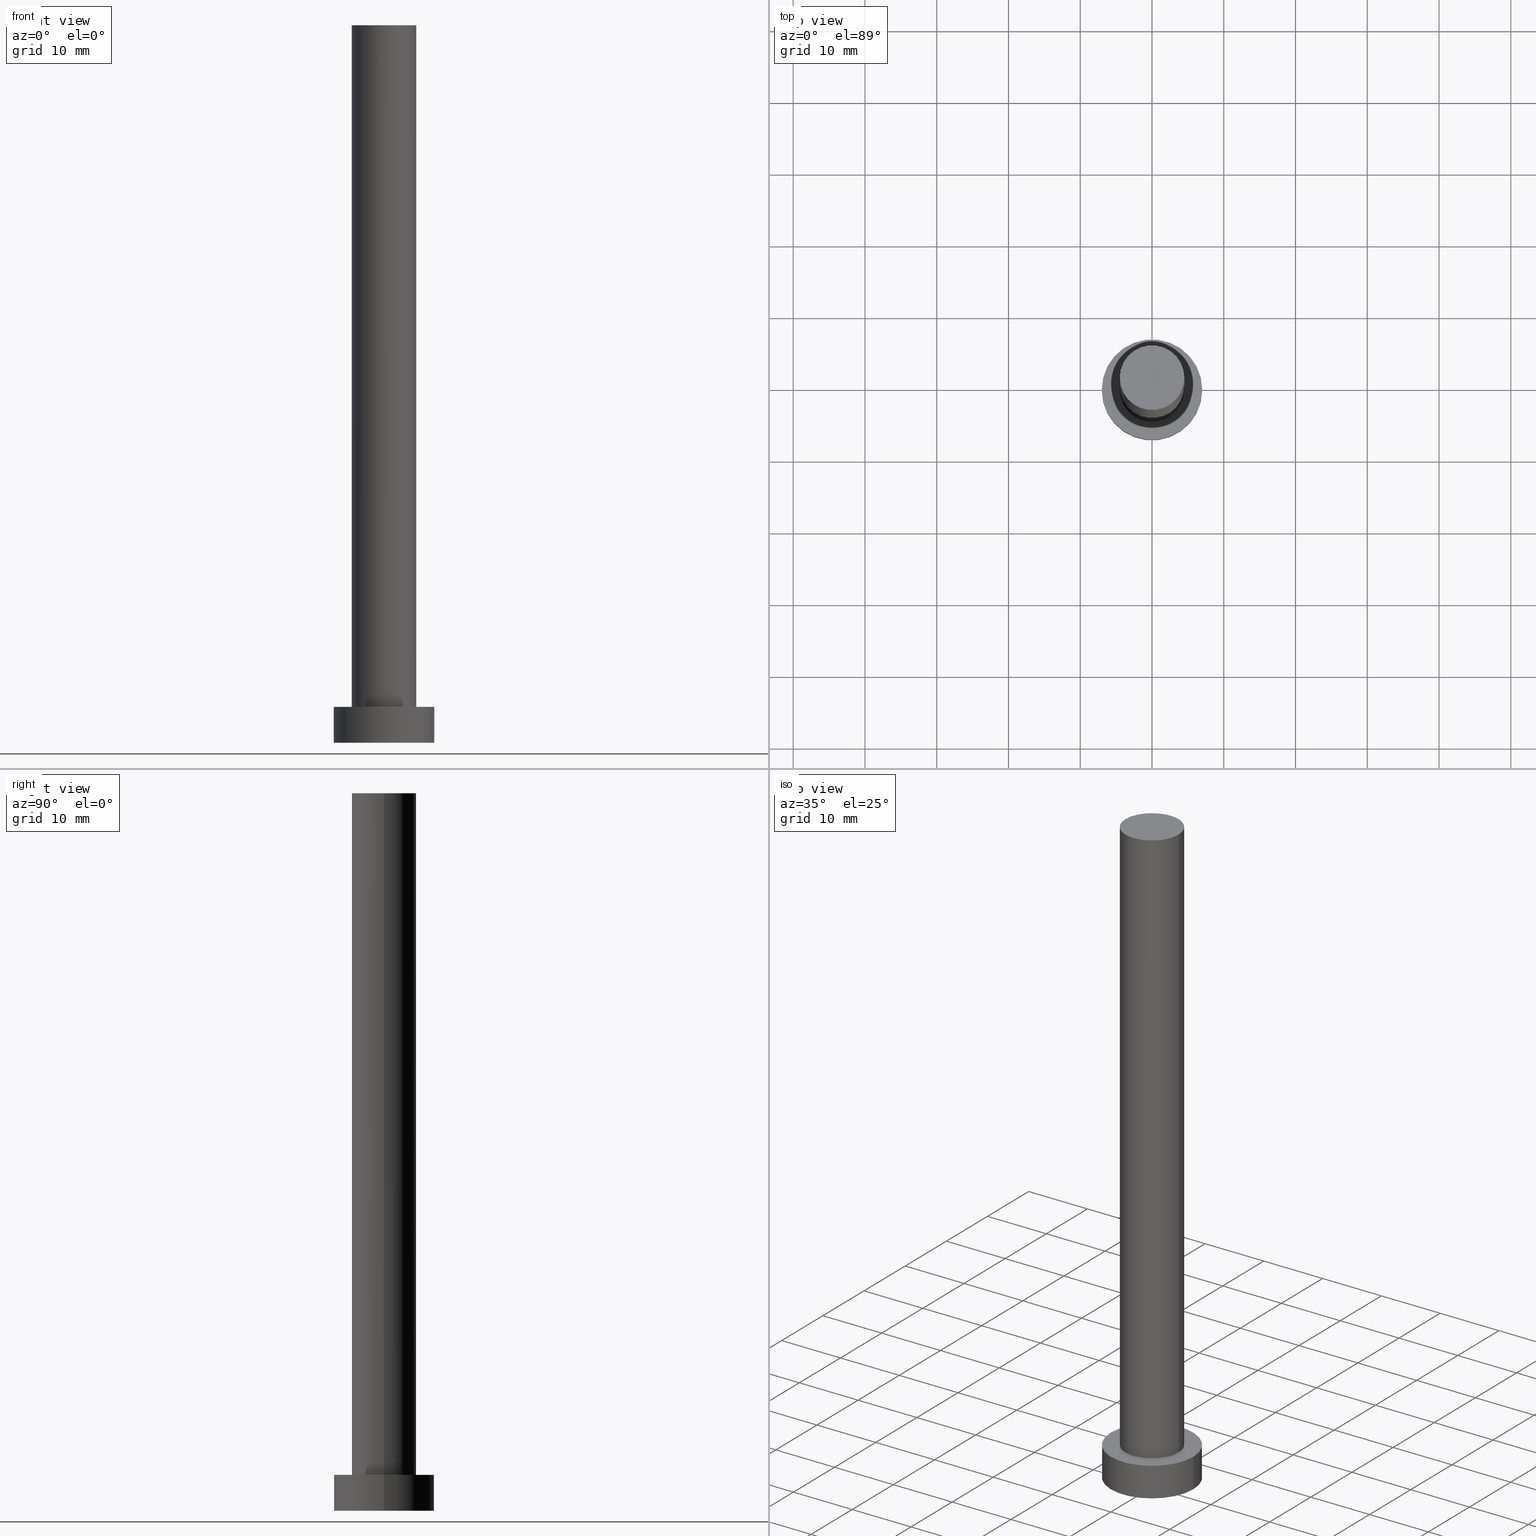
[diagram: canonical four-view strip — front | top / right | iso, engineering-drawing reading convention]
A machine part, canonical four-view strip (front | top / right | iso — engineering-drawing reading convention). The complete STEP part file that produces these views, byte-faithful:
ISO-10303-21;
HEADER;
FILE_DESCRIPTION (( 'STEP AP203' ),
    '1' );
FILE_NAME ('5e6f.STEP',
    '2023-02-13T12:09:26',
    ( '' ),
    ( '' ),
    'SwSTEP 2.0',
    'SolidWorks 2019',
    '' );
FILE_SCHEMA (( 'CONFIG_CONTROL_DESIGN' ));
ENDSEC;

DATA;
#1 = ORIENTED_EDGE ( 'NONE', *, *, #148, .F. ) ;
#2 = AXIS2_PLACEMENT_3D ( 'NONE', #46, #243, #30 ) ;
#3 = AXIS2_PLACEMENT_3D ( 'NONE', #10, #84, #91 ) ;
#4 = CARTESIAN_POINT ( 'NONE',  ( 0.000000000000000000, 0.000000000000000000, 0.000000000000000000 ) ) ;
#5 = FACE_OUTER_BOUND ( 'NONE', #189, .T. ) ;
#6 = DIRECTION ( 'NONE',  ( 0.000000000000000000, 0.000000000000000000, 1.000000000000000000 ) ) ;
#7 = CARTESIAN_POINT ( 'NONE',  ( 7.000000000000000000, 8.572527594031473190E-16, 5.000000000000000000 ) ) ;
#8 = FACE_OUTER_BOUND ( 'NONE', #244, .T. ) ;
#9 = CARTESIAN_POINT ( 'NONE',  ( 0.000000000000000000, 0.000000000000000000, 100.0000000000000000 ) ) ;
#10 = CARTESIAN_POINT ( 'NONE',  ( 0.000000000000000000, 0.000000000000000000, 0.000000000000000000 ) ) ;
#11 = VERTEX_POINT ( 'NONE', #186 ) ;
#12 = COORDINATED_UNIVERSAL_TIME_OFFSET ( 1, 0, .AHEAD. ) ;
#13 = ADVANCED_FACE ( 'NONE', ( #54 ), #205, .T. ) ;
#14 = PERSON ( 'NEUR�EN�', 'NEUR�EN�', 'NEUR�EN�', ('NEUR�EN�'), ('NEUR�EN�'), ('NEUR�EN�') ) ;
#15 = PERSON_AND_ORGANIZATION ( #14, #238 ) ;
#16 = DIRECTION ( 'NONE',  ( -0.000000000000000000, -0.000000000000000000, -1.000000000000000000 ) ) ;
#17 = PERSON_AND_ORGANIZATION_ROLE ( 'creator' ) ;
#18 = ORIENTED_EDGE ( 'NONE', *, *, #144, .T. ) ;
#19 = CIRCLE ( 'NONE', #194, 4.500000000000000888 ) ;
#20 = ORIENTED_EDGE ( 'NONE', *, *, #239, .T. ) ;
#21 = ORIENTED_EDGE ( 'NONE', *, *, #106, .T. ) ;
#22 = PRODUCT_DEFINITION_FORMATION_WITH_SPECIFIED_SOURCE ( 'LIBOVOLN�', '', #44, .NOT_KNOWN. ) ;
#23 = EDGE_LOOP ( 'NONE', ( #42, #230, #47, #222 ) ) ;
#24 = DESIGN_CONTEXT ( 'detailed design', #75, 'design' ) ;
#25 = ADVANCED_BREP_SHAPE_REPRESENTATION ( '5e6f', ( #41, #56 ), #130 ) ;
#26 = CARTESIAN_POINT ( 'NONE',  ( 4.500000000000000888, 5.510910596163089556E-16, 100.0000000000000000 ) ) ;
#27 = DIRECTION ( 'NONE',  ( 0.000000000000000000, 0.000000000000000000, 1.000000000000000000 ) ) ;
#28 = CARTESIAN_POINT ( 'NONE',  ( 0.000000000000000000, 0.000000000000000000, 0.000000000000000000 ) ) ;
#29 = CARTESIAN_POINT ( 'NONE',  ( -4.500000000000000888, 0.000000000000000000, 100.0000000000000000 ) ) ;
#30 = DIRECTION ( 'NONE',  ( -1.000000000000000000, 0.000000000000000000, 0.000000000000000000 ) ) ;
#31 = EDGE_LOOP ( 'NONE', ( #146, #111, #20, #149 ) ) ;
#32 = PLANE ( 'NONE',  #114 ) ;
#33 = DIRECTION ( 'NONE',  ( -0.000000000000000000, -0.000000000000000000, -1.000000000000000000 ) ) ;
#34 = EDGE_CURVE ( 'NONE', #64, #83, #207, .T. ) ;
#35 = APPROVAL_STATUS ( 'not_yet_approved' ) ;
#36 = DATE_AND_TIME ( #138, #171 ) ;
#37 = PERSON_AND_ORGANIZATION ( #14, #238 ) ;
#38 = APPROVAL ( #35, 'NEUR�EN�' ) ;
#39 = VERTEX_POINT ( 'NONE', #29 ) ;
#40 = DATE_AND_TIME ( #184, #151 ) ;
#41 = MANIFOLD_SOLID_BREP ( 'P�idat vysunut�m3', #140 ) ;
#42 = ORIENTED_EDGE ( 'NONE', *, *, #101, .F. ) ;
#43 = CIRCLE ( 'NONE', #3, 7.000000000000000000 ) ;
#44 = PRODUCT ( '5e6f', '5e6f', '', ( #99 ) ) ;
#45 = CARTESIAN_POINT ( 'NONE',  ( 0.000000000000000000, 0.000000000000000000, 100.0000000000000000 ) ) ;
#46 = CARTESIAN_POINT ( 'NONE',  ( 0.000000000000000000, 0.000000000000000000, 100.0000000000000000 ) ) ;
#47 = ORIENTED_EDGE ( 'NONE', *, *, #160, .T. ) ;
#48 =( NAMED_UNIT ( * ) SI_UNIT ( $, .STERADIAN. ) SOLID_ANGLE_UNIT ( ) );
#49 = AXIS2_PLACEMENT_3D ( 'NONE', #28, #185, #219 ) ;
#50 = DIRECTION ( 'NONE',  ( 0.000000000000000000, 0.000000000000000000, 1.000000000000000000 ) ) ;
#51 = CARTESIAN_POINT ( 'NONE',  ( 4.500000000000000888, 5.510910596163089556E-16, 100.0000000000000000 ) ) ;
#52 = APPLICATION_CONTEXT ( 'configuration controlled 3d designs of mechanical parts and assemblies' ) ;
#53 = CARTESIAN_POINT ( 'NONE',  ( -4.500000000000000888, 0.000000000000000000, 5.000000000000000000 ) ) ;
#54 = FACE_OUTER_BOUND ( 'NONE', #31, .T. ) ;
#55 = VERTEX_POINT ( 'NONE', #201 ) ;
#56 = AXIS2_PLACEMENT_3D ( 'NONE', #202, #27, #228 ) ;
#57 = FACE_OUTER_BOUND ( 'NONE', #210, .T. ) ;
#58 = DATE_AND_TIME ( #155, #79 ) ;
#59 = CC_DESIGN_PERSON_AND_ORGANIZATION_ASSIGNMENT ( #196, #76, ( #44 ) ) ;
#60 = PERSON_AND_ORGANIZATION ( #14, #238 ) ;
#61 = EDGE_CURVE ( 'NONE', #64, #39, #161, .T. ) ;
#62 = APPROVAL_DATE_TIME ( #40, #141 ) ;
#63 = FACE_OUTER_BOUND ( 'NONE', #166, .T. ) ;
#64 = VERTEX_POINT ( 'NONE', #26 ) ;
#65 = UNCERTAINTY_MEASURE_WITH_UNIT (LENGTH_MEASURE( 1.000000000000000082E-05 ), #72, 'distance_accuracy_value', 'NONE');
#66 = CARTESIAN_POINT ( 'NONE',  ( 0.000000000000000000, 0.000000000000000000, 5.000000000000000000 ) ) ;
#67 = DIRECTION ( 'NONE',  ( 0.000000000000000000, 0.000000000000000000, 1.000000000000000000 ) ) ;
#68 = DIRECTION ( 'NONE',  ( 1.000000000000000000, 0.000000000000000000, -0.000000000000000000 ) ) ;
#69 = CC_DESIGN_PERSON_AND_ORGANIZATION_ASSIGNMENT ( #249, #192, ( #22 ) ) ;
#70 = ORIENTED_EDGE ( 'NONE', *, *, #34, .F. ) ;
#71 = ORIENTED_EDGE ( 'NONE', *, *, #133, .T. ) ;
#72 =( LENGTH_UNIT ( ) NAMED_UNIT ( * ) SI_UNIT ( .MILLI., .METRE. ) );
#73 = AXIS2_PLACEMENT_3D ( 'NONE', #206, #67, #126 ) ;
#74 = PRODUCT_RELATED_PRODUCT_CATEGORY ( 'detail', '', ( #44 ) ) ;
#75 = APPLICATION_CONTEXT ( 'configuration controlled 3d designs of mechanical parts and assemblies' ) ;
#76 = PERSON_AND_ORGANIZATION_ROLE ( 'design_owner' ) ;
#77 = APPROVAL_DATE_TIME ( #58, #38 ) ;
#78 = CIRCLE ( 'NONE', #135, 7.000000000000000000 ) ;
#79 = LOCAL_TIME ( 13, 9, 26.00000000000000000, #216 ) ;
#80 = PLANE ( 'NONE',  #105 ) ;
#81 = DIRECTION ( 'NONE',  ( 1.000000000000000000, 0.000000000000000000, 0.000000000000000000 ) ) ;
#82 = SECURITY_CLASSIFICATION ( '', '', #250 ) ;
#83 = VERTEX_POINT ( 'NONE', #131 ) ;
#84 = DIRECTION ( 'NONE',  ( 0.000000000000000000, 0.000000000000000000, 1.000000000000000000 ) ) ;
#85 = DIRECTION ( 'NONE',  ( 0.000000000000000000, 0.000000000000000000, 1.000000000000000000 ) ) ;
#86 = ADVANCED_FACE ( 'NONE', ( #5 ), #32, .T. ) ;
#87 = DIRECTION ( 'NONE',  ( 1.000000000000000000, 0.000000000000000000, 0.000000000000000000 ) ) ;
#88 = ORIENTED_EDGE ( 'NONE', *, *, #226, .T. ) ;
#89 = CARTESIAN_POINT ( 'NONE',  ( -7.000000000000000000, 0.000000000000000000, 5.000000000000000000 ) ) ;
#90 = VERTEX_POINT ( 'NONE', #7 ) ;
#91 = DIRECTION ( 'NONE',  ( 1.000000000000000000, 0.000000000000000000, 0.000000000000000000 ) ) ;
#92 = CALENDAR_DATE ( 2023, 13, 2 ) ;
#93 = APPROVAL_STATUS ( 'not_yet_approved' ) ;
#94 = AXIS2_PLACEMENT_3D ( 'NONE', #4, #167, #241 ) ;
#95 = DIRECTION ( 'NONE',  ( 0.000000000000000000, 0.000000000000000000, 1.000000000000000000 ) ) ;
#96 = ADVANCED_FACE ( 'NONE', ( #168 ), #242, .T. ) ;
#97 = DATE_TIME_ROLE ( 'creation_date' ) ;
#98 = ORIENTED_EDGE ( 'NONE', *, *, #214, .F. ) ;
#99 = MECHANICAL_CONTEXT ( 'NONE', #52, 'mechanical' ) ;
#100 = VECTOR ( 'NONE', #233, 1000.000000000000000 ) ;
#101 = EDGE_CURVE ( 'NONE', #90, #163, #118, .T. ) ;
#102 = LINE ( 'NONE', #181, #100 ) ;
#103 = DIRECTION ( 'NONE',  ( 0.000000000000000000, 0.000000000000000000, 1.000000000000000000 ) ) ;
#104 = ORIENTED_EDGE ( 'NONE', *, *, #133, .F. ) ;
#105 = AXIS2_PLACEMENT_3D ( 'NONE', #66, #108, #142 ) ;
#106 = EDGE_CURVE ( 'NONE', #90, #11, #150, .T. ) ;
#107 = COORDINATED_UNIVERSAL_TIME_OFFSET ( 1, 0, .AHEAD. ) ;
#108 = DIRECTION ( 'NONE',  ( 0.000000000000000000, 0.000000000000000000, 1.000000000000000000 ) ) ;
#109 = PLANE ( 'NONE',  #94 ) ;
#110 = ADVANCED_FACE ( 'NONE', ( #57 ), #183, .T. ) ;
#111 = ORIENTED_EDGE ( 'NONE', *, *, #101, .T. ) ;
#112 = DIRECTION ( 'NONE',  ( -0.000000000000000000, -0.000000000000000000, -1.000000000000000000 ) ) ;
#113 = DIRECTION ( 'NONE',  ( 0.000000000000000000, 0.000000000000000000, 1.000000000000000000 ) ) ;
#114 = AXIS2_PLACEMENT_3D ( 'NONE', #170, #85, #68 ) ;
#115 = DIRECTION ( 'NONE',  ( -0.000000000000000000, -0.000000000000000000, -1.000000000000000000 ) ) ;
#116 = PERSON_AND_ORGANIZATION ( #14, #238 ) ;
#117 = APPROVAL ( #121, 'NEUR�EN�' ) ;
#118 = LINE ( 'NONE', #193, #236 ) ;
#119 = VECTOR ( 'NONE', #112, 1000.000000000000000 ) ;
#120 = COORDINATED_UNIVERSAL_TIME_OFFSET ( 1, 0, .AHEAD. ) ;
#121 = APPROVAL_STATUS ( 'not_yet_approved' ) ;
#122 = CIRCLE ( 'NONE', #73, 4.500000000000000888 ) ;
#123 = CC_DESIGN_PERSON_AND_ORGANIZATION_ASSIGNMENT ( #37, #190, ( #82 ) ) ;
#124 = AXIS2_PLACEMENT_3D ( 'NONE', #215, #95, #227 ) ;
#125 = DIRECTION ( 'NONE',  ( -0.000000000000000000, -0.000000000000000000, -1.000000000000000000 ) ) ;
#126 = DIRECTION ( 'NONE',  ( 1.000000000000000000, 0.000000000000000000, 0.000000000000000000 ) ) ;
#127 = DIRECTION ( 'NONE',  ( 1.000000000000000000, 0.000000000000000000, 0.000000000000000000 ) ) ;
#128 = DIRECTION ( 'NONE',  ( 1.000000000000000000, 0.000000000000000000, 0.000000000000000000 ) ) ;
#129 = VECTOR ( 'NONE', #115, 1000.000000000000000 ) ;
#130 =( GEOMETRIC_REPRESENTATION_CONTEXT ( 3 ) GLOBAL_UNCERTAINTY_ASSIGNED_CONTEXT ( ( #65 ) ) GLOBAL_UNIT_ASSIGNED_CONTEXT ( ( #72, #188, #48 ) ) REPRESENTATION_CONTEXT ( 'NONE', 'WORKASPACE' ) );
#131 = CARTESIAN_POINT ( 'NONE',  ( 4.500000000000000888, 5.510910596163089556E-16, 5.000000000000000000 ) ) ;
#132 = LINE ( 'NONE', #89, #119 ) ;
#133 = EDGE_CURVE ( 'NONE', #39, #252, #102, .T. ) ;
#134 = ORIENTED_EDGE ( 'NONE', *, *, #172, .T. ) ;
#135 = AXIS2_PLACEMENT_3D ( 'NONE', #143, #103, #81 ) ;
#136 = APPLICATION_PROTOCOL_DEFINITION ( 'international standard', 'config_control_design', 1994, #52 ) ;
#137 = PRODUCT_DEFINITION_SHAPE ( 'NONE', 'NONE',  #248 ) ;
#138 = CALENDAR_DATE ( 2023, 13, 2 ) ;
#139 = CARTESIAN_POINT ( 'NONE',  ( 0.000000000000000000, 0.000000000000000000, 5.000000000000000000 ) ) ;
#140 = CLOSED_SHELL ( 'NONE', ( #110, #13, #96, #232, #178, #152, #86 ) ) ;
#141 = APPROVAL ( #93, 'NEUR�EN�' ) ;
#142 = DIRECTION ( 'NONE',  ( 1.000000000000000000, 0.000000000000000000, -0.000000000000000000 ) ) ;
#143 = CARTESIAN_POINT ( 'NONE',  ( 0.000000000000000000, 0.000000000000000000, 5.000000000000000000 ) ) ;
#144 = EDGE_CURVE ( 'NONE', #11, #90, #78, .T. ) ;
#145 = APPROVAL_PERSON_ORGANIZATION ( #15, #141, #175 ) ;
#146 = ORIENTED_EDGE ( 'NONE', *, *, #106, .F. ) ;
#147 = LOCAL_TIME ( 13, 9, 26.00000000000000000, #198 ) ;
#148 = EDGE_CURVE ( 'NONE', #252, #83, #19, .T. ) ;
#149 = ORIENTED_EDGE ( 'NONE', *, *, #160, .F. ) ;
#150 = CIRCLE ( 'NONE', #124, 7.000000000000000000 ) ;
#151 = LOCAL_TIME ( 13, 9, 26.00000000000000000, #107 ) ;
#152 = ADVANCED_FACE ( 'NONE', ( #8 ), #165, .T. ) ;
#153 = DATE_AND_TIME ( #92, #162 ) ;
#154 = ORIENTED_EDGE ( 'NONE', *, *, #148, .T. ) ;
#155 = CALENDAR_DATE ( 2023, 13, 2 ) ;
#156 = APPROVAL_PERSON_ORGANIZATION ( #60, #38, #225 ) ;
#157 = PERSON_AND_ORGANIZATION ( #14, #238 ) ;
#158 = SHAPE_DEFINITION_REPRESENTATION ( #137, #25 ) ;
#159 = DIRECTION ( 'NONE',  ( -1.000000000000000000, 0.000000000000000000, 0.000000000000000000 ) ) ;
#160 = EDGE_CURVE ( 'NONE', #11, #55, #132, .T. ) ;
#161 = CIRCLE ( 'NONE', #208, 4.500000000000000888 ) ;
#162 = LOCAL_TIME ( 13, 9, 26.00000000000000000, #12 ) ;
#163 = VERTEX_POINT ( 'NONE', #246 ) ;
#164 = AXIS2_PLACEMENT_3D ( 'NONE', #203, #6, #87 ) ;
#165 = CYLINDRICAL_SURFACE ( 'NONE', #2, 4.500000000000000888 ) ;
#166 = EDGE_LOOP ( 'NONE', ( #18, #21 ) ) ;
#167 = DIRECTION ( 'NONE',  ( 0.000000000000000000, 0.000000000000000000, 1.000000000000000000 ) ) ;
#168 = FACE_OUTER_BOUND ( 'NONE', #23, .T. ) ;
#169 = CC_DESIGN_DATE_AND_TIME_ASSIGNMENT ( #36, #97, ( #248 ) ) ;
#170 = CARTESIAN_POINT ( 'NONE',  ( 0.000000000000000000, 0.000000000000000000, 100.0000000000000000 ) ) ;
#171 = LOCAL_TIME ( 13, 9, 26.00000000000000000, #120 ) ;
#172 = EDGE_CURVE ( 'NONE', #39, #64, #122, .T. ) ;
#173 = CARTESIAN_POINT ( 'NONE',  ( 0.000000000000000000, 0.000000000000000000, 5.000000000000000000 ) ) ;
#174 = DATE_TIME_ROLE ( 'classification_date' ) ;
#175 = APPROVAL_ROLE ( '' ) ;
#176 = CALENDAR_DATE ( 2023, 13, 2 ) ;
#177 = APPLICATION_PROTOCOL_DEFINITION ( 'international standard', 'config_control_design', 1994, #75 ) ;
#178 = ADVANCED_FACE ( 'NONE', ( #200 ), #109, .F. ) ;
#179 = DATE_AND_TIME ( #176, #147 ) ;
#180 = FACE_BOUND ( 'NONE', #255, .T. ) ;
#181 = CARTESIAN_POINT ( 'NONE',  ( -4.500000000000000888, 0.000000000000000000, 100.0000000000000000 ) ) ;
#182 = CC_DESIGN_APPROVAL ( #117, ( #22 ) ) ;
#183 = CYLINDRICAL_SURFACE ( 'NONE', #209, 4.500000000000000888 ) ;
#184 = CALENDAR_DATE ( 2023, 13, 2 ) ;
#185 = DIRECTION ( 'NONE',  ( 0.000000000000000000, 0.000000000000000000, 1.000000000000000000 ) ) ;
#186 = CARTESIAN_POINT ( 'NONE',  ( -7.000000000000000000, 0.000000000000000000, 5.000000000000000000 ) ) ;
#187 = AXIS2_PLACEMENT_3D ( 'NONE', #173, #33, #221 ) ;
#188 =( NAMED_UNIT ( * ) PLANE_ANGLE_UNIT ( ) SI_UNIT ( $, .RADIAN. ) );
#189 = EDGE_LOOP ( 'NONE', ( #134, #218 ) ) ;
#190 = PERSON_AND_ORGANIZATION_ROLE ( 'classification_officer' ) ;
#191 = ORIENTED_EDGE ( 'NONE', *, *, #61, .F. ) ;
#192 = PERSON_AND_ORGANIZATION_ROLE ( 'design_supplier' ) ;
#193 = CARTESIAN_POINT ( 'NONE',  ( 7.000000000000000000, 8.572527594031473190E-16, 5.000000000000000000 ) ) ;
#194 = AXIS2_PLACEMENT_3D ( 'NONE', #217, #50, #128 ) ;
#195 = PERSON_AND_ORGANIZATION ( #14, #238 ) ;
#196 = PERSON_AND_ORGANIZATION ( #14, #238 ) ;
#197 = ORIENTED_EDGE ( 'NONE', *, *, #34, .T. ) ;
#198 = COORDINATED_UNIVERSAL_TIME_OFFSET ( 1, 0, .AHEAD. ) ;
#199 = CC_DESIGN_APPROVAL ( #38, ( #248 ) ) ;
#200 = FACE_OUTER_BOUND ( 'NONE', #211, .T. ) ;
#201 = CARTESIAN_POINT ( 'NONE',  ( -7.000000000000000000, 0.000000000000000000, 0.000000000000000000 ) ) ;
#202 = CARTESIAN_POINT ( 'NONE',  ( 0.000000000000000000, 0.000000000000000000, 0.000000000000000000 ) ) ;
#203 = CARTESIAN_POINT ( 'NONE',  ( 0.000000000000000000, 0.000000000000000000, 5.000000000000000000 ) ) ;
#204 = CC_DESIGN_PERSON_AND_ORGANIZATION_ASSIGNMENT ( #195, #17, ( #248 ) ) ;
#205 = CYLINDRICAL_SURFACE ( 'NONE', #187, 7.000000000000000000 ) ;
#206 = CARTESIAN_POINT ( 'NONE',  ( 0.000000000000000000, 0.000000000000000000, 100.0000000000000000 ) ) ;
#207 = LINE ( 'NONE', #51, #129 ) ;
#208 = AXIS2_PLACEMENT_3D ( 'NONE', #9, #113, #127 ) ;
#209 = AXIS2_PLACEMENT_3D ( 'NONE', #45, #125, #159 ) ;
#210 = EDGE_LOOP ( 'NONE', ( #191, #197, #88, #104 ) ) ;
#211 = EDGE_LOOP ( 'NONE', ( #98, #235 ) ) ;
#212 = APPROVAL_DATE_TIME ( #179, #117 ) ;
#213 = DIRECTION ( 'NONE',  ( -1.000000000000000000, 0.000000000000000000, 0.000000000000000000 ) ) ;
#214 = EDGE_CURVE ( 'NONE', #55, #163, #220, .T. ) ;
#215 = CARTESIAN_POINT ( 'NONE',  ( 0.000000000000000000, 0.000000000000000000, 5.000000000000000000 ) ) ;
#216 = COORDINATED_UNIVERSAL_TIME_OFFSET ( 1, 0, .AHEAD. ) ;
#217 = CARTESIAN_POINT ( 'NONE',  ( 0.000000000000000000, 0.000000000000000000, 5.000000000000000000 ) ) ;
#218 = ORIENTED_EDGE ( 'NONE', *, *, #61, .T. ) ;
#219 = DIRECTION ( 'NONE',  ( 1.000000000000000000, 0.000000000000000000, 0.000000000000000000 ) ) ;
#220 = CIRCLE ( 'NONE', #49, 7.000000000000000000 ) ;
#221 = DIRECTION ( 'NONE',  ( -1.000000000000000000, 0.000000000000000000, 0.000000000000000000 ) ) ;
#222 = ORIENTED_EDGE ( 'NONE', *, *, #214, .T. ) ;
#223 = CC_DESIGN_DATE_AND_TIME_ASSIGNMENT ( #153, #174, ( #82 ) ) ;
#224 = CC_DESIGN_SECURITY_CLASSIFICATION ( #82, ( #22 ) ) ;
#225 = APPROVAL_ROLE ( '' ) ;
#226 = EDGE_CURVE ( 'NONE', #83, #252, #247, .T. ) ;
#227 = DIRECTION ( 'NONE',  ( 1.000000000000000000, 0.000000000000000000, 0.000000000000000000 ) ) ;
#228 = DIRECTION ( 'NONE',  ( 1.000000000000000000, 0.000000000000000000, 0.000000000000000000 ) ) ;
#229 = AXIS2_PLACEMENT_3D ( 'NONE', #139, #251, #213 ) ;
#230 = ORIENTED_EDGE ( 'NONE', *, *, #144, .F. ) ;
#231 = APPROVAL_ROLE ( '' ) ;
#232 = ADVANCED_FACE ( 'NONE', ( #180, #63 ), #80, .T. ) ;
#233 = DIRECTION ( 'NONE',  ( -0.000000000000000000, -0.000000000000000000, -1.000000000000000000 ) ) ;
#234 = ORIENTED_EDGE ( 'NONE', *, *, #172, .F. ) ;
#235 = ORIENTED_EDGE ( 'NONE', *, *, #239, .F. ) ;
#236 = VECTOR ( 'NONE', #16, 1000.000000000000000 ) ;
#237 = APPROVAL_PERSON_ORGANIZATION ( #157, #117, #231 ) ;
#238 = ORGANIZATION ( 'NEUR�EN�', 'NEUR�EN�', '' ) ;
#239 = EDGE_CURVE ( 'NONE', #163, #55, #43, .T. ) ;
#240 = ORIENTED_EDGE ( 'NONE', *, *, #226, .F. ) ;
#241 = DIRECTION ( 'NONE',  ( 1.000000000000000000, 0.000000000000000000, -0.000000000000000000 ) ) ;
#242 = CYLINDRICAL_SURFACE ( 'NONE', #229, 7.000000000000000000 ) ;
#243 = DIRECTION ( 'NONE',  ( -0.000000000000000000, -0.000000000000000000, -1.000000000000000000 ) ) ;
#244 = EDGE_LOOP ( 'NONE', ( #70, #234, #71, #154 ) ) ;
#245 = CC_DESIGN_APPROVAL ( #141, ( #82 ) ) ;
#246 = CARTESIAN_POINT ( 'NONE',  ( 7.000000000000000000, 8.572527594031473190E-16, 0.000000000000000000 ) ) ;
#247 = CIRCLE ( 'NONE', #164, 4.500000000000000888 ) ;
#248 = PRODUCT_DEFINITION ( 'NEZN�M�', '', #22, #24 ) ;
#249 = PERSON_AND_ORGANIZATION ( #14, #238 ) ;
#250 = SECURITY_CLASSIFICATION_LEVEL ( 'unclassified' ) ;
#251 = DIRECTION ( 'NONE',  ( -0.000000000000000000, -0.000000000000000000, -1.000000000000000000 ) ) ;
#252 = VERTEX_POINT ( 'NONE', #53 ) ;
#253 = PERSON_AND_ORGANIZATION_ROLE ( 'creator' ) ;
#254 = CC_DESIGN_PERSON_AND_ORGANIZATION_ASSIGNMENT ( #116, #253, ( #22 ) ) ;
#255 = EDGE_LOOP ( 'NONE', ( #1, #240 ) ) ;
ENDSEC;
END-ISO-10303-21;
